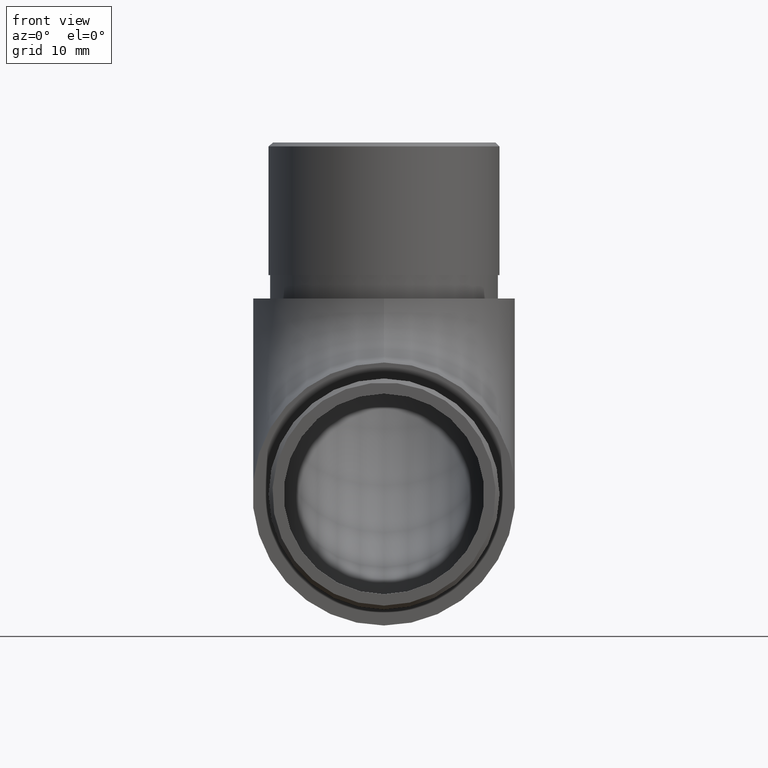
[diagram: clean part render]
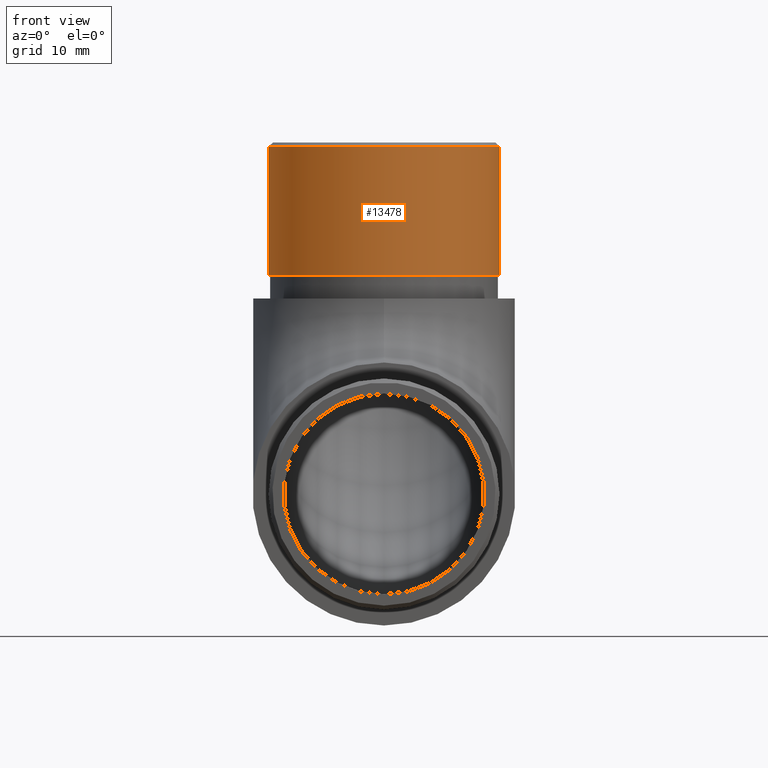
[diagram: same view with one face highlighted and labeled with its STEP entity id]
A machine part, front view. The second image highlights one B-rep face of the part: STEP entity #13478.
In plain terms, the highlighted cylindrical surface (bore or boss wall) has radius 14.8 mm, axis along (-0, -0, -1).
Its self-contained STEP definition (entity closure, byte-faithful):
#1082 = VERTEX_POINT ( 'NONE', #11485 ) ;
#1328 = CARTESIAN_POINT ( 'NONE',  ( 0.0000000000000000000, 25.04999999999999400, 44.90000000000000600 ) ) ;
#1674 = DIRECTION ( 'NONE',  ( 0.0000000000000000000, 0.0000000000000000000, -1.000000000000000000 ) ) ;
#1862 = EDGE_LOOP ( 'NONE', ( #10344 ) ) ;
#2461 = AXIS2_PLACEMENT_3D ( 'NONE', #1328, #2626, #3694 ) ;
#2519 = VERTEX_POINT ( 'NONE', #14880 ) ;
#2626 = DIRECTION ( 'NONE',  ( 0.0000000000000000000, 0.0000000000000000000, 1.000000000000000000 ) ) ;
#3343 = DIRECTION ( 'NONE',  ( -1.000000000000000000, 0.0000000000000000000, 0.0000000000000000000 ) ) ;
#3442 = CARTESIAN_POINT ( 'NONE',  ( 0.0000000000000000000, 25.04999999999999400, 61.90000000000000600 ) ) ;
#3694 = DIRECTION ( 'NONE',  ( 1.000000000000000000, 0.0000000000000000000, 0.0000000000000000000 ) ) ;
#4357 = EDGE_CURVE ( 'NONE', #2519, #2519, #13087, .T. ) ;
#4618 = ORIENTED_EDGE ( 'NONE', *, *, #4357, .T. ) ;
#4886 = CIRCLE ( 'NONE', #6151, 14.80000000000000100 ) ;
#6121 = FACE_OUTER_BOUND ( 'NONE', #1862, .T. ) ;
#6151 = AXIS2_PLACEMENT_3D ( 'NONE', #8338, #1674, #13148 ) ;
#6887 = DIRECTION ( 'NONE',  ( -0.0000000000000000000, -0.0000000000000000000, -1.000000000000000000 ) ) ;
#8338 = CARTESIAN_POINT ( 'NONE',  ( 0.0000000000000000000, 25.04999999999999400, 61.40000000000002700 ) ) ;
#10271 = CYLINDRICAL_SURFACE ( 'NONE', #14388, 14.80000000000000100 ) ;
#10344 = ORIENTED_EDGE ( 'NONE', *, *, #13755, .T. ) ;
#11485 = CARTESIAN_POINT ( 'NONE',  ( 14.80000000000000100, 25.04999999999999400, 61.40000000000002700 ) ) ;
#11884 = FACE_OUTER_BOUND ( 'NONE', #14026, .T. ) ;
#13087 = CIRCLE ( 'NONE', #2461, 14.80000000000000100 ) ;
#13148 = DIRECTION ( 'NONE',  ( 1.000000000000000000, 0.0000000000000000000, 0.0000000000000000000 ) ) ;
#13478 = ADVANCED_FACE ( 'NONE', ( #6121, #11884 ), #10271, .T. ) ;
#13755 = EDGE_CURVE ( 'NONE', #1082, #1082, #4886, .T. ) ;
#14026 = EDGE_LOOP ( 'NONE', ( #4618 ) ) ;
#14388 = AXIS2_PLACEMENT_3D ( 'NONE', #3442, #6887, #3343 ) ;
#14880 = CARTESIAN_POINT ( 'NONE',  ( 14.80000000000000100, 25.04999999999999400, 44.90000000000000600 ) ) ;